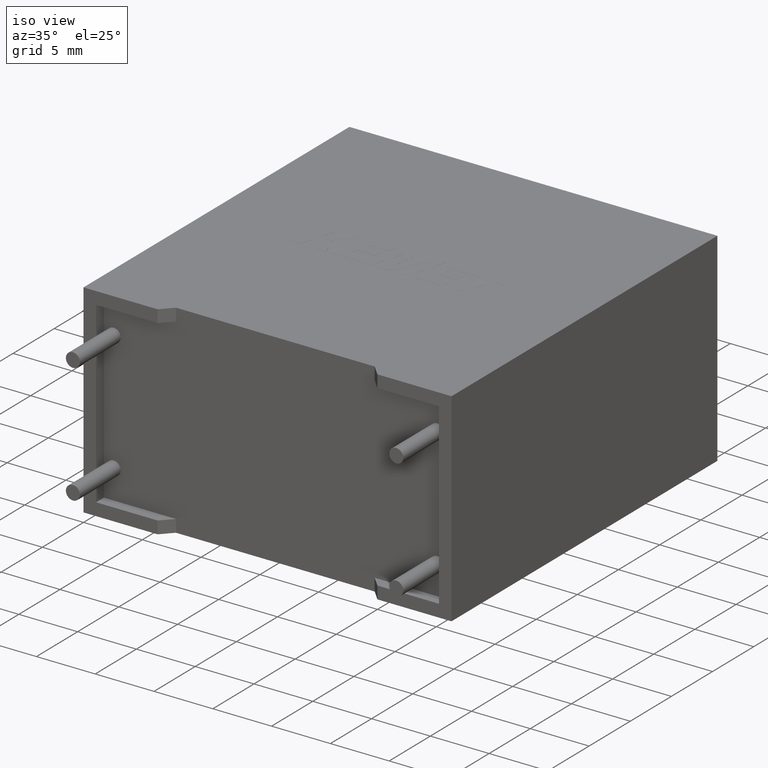
[diagram: clean part render]
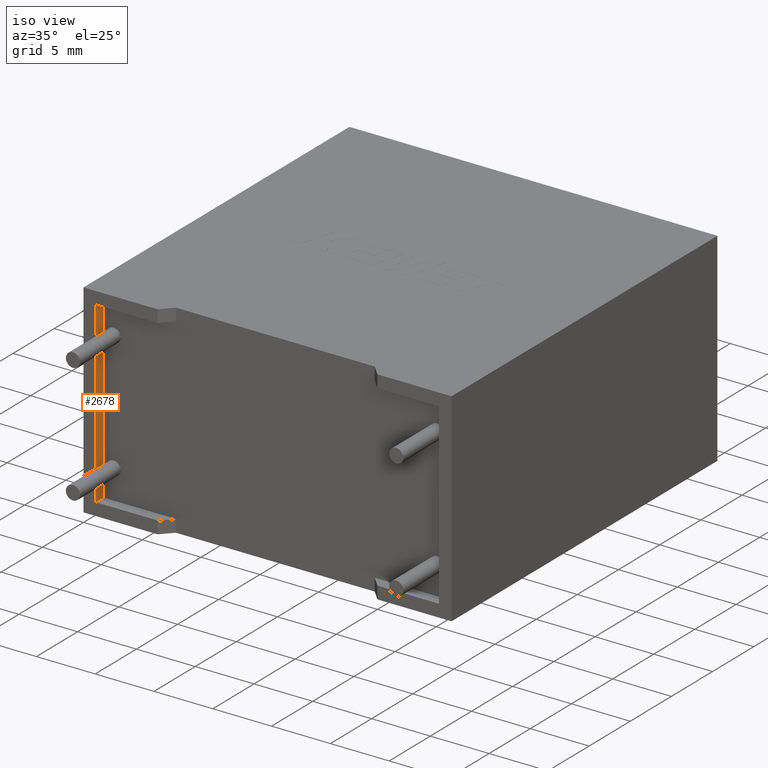
[diagram: same view with one face highlighted and labeled with its STEP entity id]
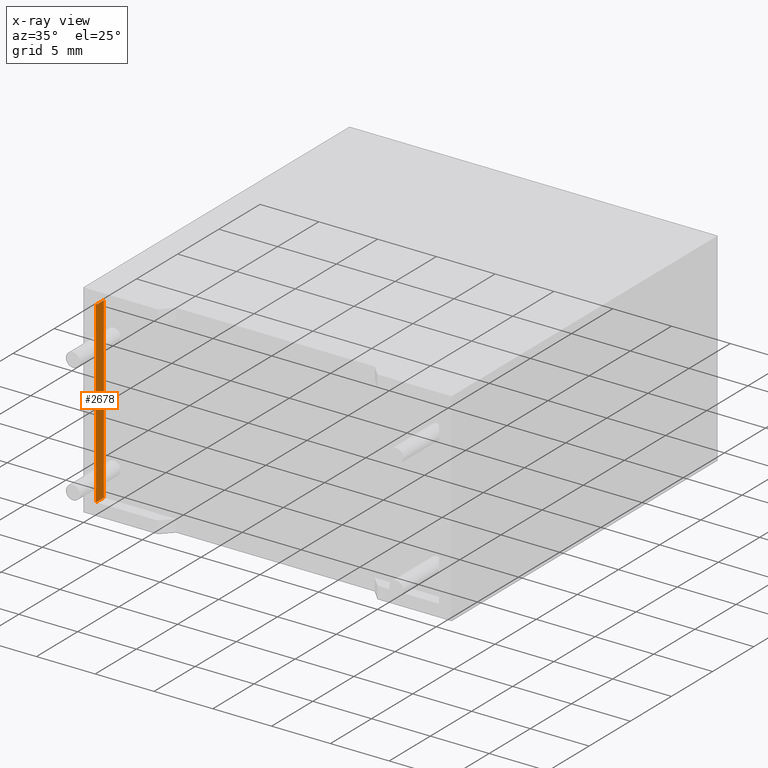
[diagram: x-ray of the same camera — body ghosted, the highlighted face saturated]
A machine part, iso view. The second image highlights one B-rep face of the part: STEP entity #2678.
The next image is the same camera in x-ray: the body ghosted, the highlighted face saturated — about 0% of this face is hidden behind the body in this view.
In plain terms, the highlighted planar face has unit normal (-1, 0, 0).
Its self-contained STEP definition (entity closure, byte-faithful):
#100 = DIRECTION ( 'NONE',  ( 0.000000000000000000, 0.000000000000000000, -1.000000000000000000 ) ) ;
#155 = ORIENTED_EDGE ( 'NONE', *, *, #1117, .F. ) ;
#188 = LINE ( 'NONE', #1137, #2950 ) ;
#255 = VERTEX_POINT ( 'NONE', #1700 ) ;
#390 = ORIENTED_EDGE ( 'NONE', *, *, #3064, .T. ) ;
#451 = VERTEX_POINT ( 'NONE', #807 ) ;
#585 = LINE ( 'NONE', #1593, #2782 ) ;
#588 = VERTEX_POINT ( 'NONE', #1067 ) ;
#751 = DIRECTION ( 'NONE',  ( -0.000000000000000000, -1.000000000000000000, -0.000000000000000000 ) ) ;
#807 = CARTESIAN_POINT ( 'NONE',  ( 1.063431000000000015, 0.000000000000000000, 1.063431000000000015 ) ) ;
#997 = ORIENTED_EDGE ( 'NONE', *, *, #2869, .T. ) ;
#1044 = LINE ( 'NONE', #2024, #1072 ) ;
#1067 = CARTESIAN_POINT ( 'NONE',  ( 1.063431000000000015, 0.9496199999999999086, 1.063431000000000015 ) ) ;
#1072 = VECTOR ( 'NONE', #100, 1000.000000000000000 ) ;
#1106 = PLANE ( 'NONE',  #2304 ) ;
#1117 = EDGE_CURVE ( 'NONE', #255, #588, #1044, .T. ) ;
#1137 = CARTESIAN_POINT ( 'NONE',  ( 1.063431000000000015, 0.000000000000000000, 16.23656899999999936 ) ) ;
#1421 = DIRECTION ( 'NONE',  ( 0.000000000000000000, 0.000000000000000000, -1.000000000000000000 ) ) ;
#1446 = LINE ( 'NONE', #2649, #2900 ) ;
#1549 = ORIENTED_EDGE ( 'NONE', *, *, #2132, .F. ) ;
#1593 = CARTESIAN_POINT ( 'NONE',  ( 1.063431000000000015, 0.9496199999999999086, 1.063431000000000015 ) ) ;
#1634 = FACE_OUTER_BOUND ( 'NONE', #2527, .T. ) ;
#1700 = CARTESIAN_POINT ( 'NONE',  ( 1.063431000000000015, 0.9496199999999999086, 16.23656899999999936 ) ) ;
#1780 = CARTESIAN_POINT ( 'NONE',  ( 1.063431000000000015, 0.000000000000000000, 16.23656899999999936 ) ) ;
#1834 = DIRECTION ( 'NONE',  ( -0.000000000000000000, -1.000000000000000000, -0.000000000000000000 ) ) ;
#1893 = CARTESIAN_POINT ( 'NONE',  ( 1.063431000000000015, 0.9496199999999999086, 16.23656899999999936 ) ) ;
#2024 = CARTESIAN_POINT ( 'NONE',  ( 1.063431000000000015, 0.9496199999999999086, 16.23656899999999936 ) ) ;
#2132 = EDGE_CURVE ( 'NONE', #588, #451, #585, .T. ) ;
#2304 = AXIS2_PLACEMENT_3D ( 'NONE', #1893, #2599, #2380 ) ;
#2380 = DIRECTION ( 'NONE',  ( 0.000000000000000000, 0.000000000000000000, 1.000000000000000000 ) ) ;
#2459 = VERTEX_POINT ( 'NONE', #1780 ) ;
#2527 = EDGE_LOOP ( 'NONE', ( #390, #1549, #155, #997 ) ) ;
#2599 = DIRECTION ( 'NONE',  ( -1.000000000000000000, 0.000000000000000000, 0.000000000000000000 ) ) ;
#2649 = CARTESIAN_POINT ( 'NONE',  ( 1.063431000000000015, 0.9496199999999999086, 16.23656899999999936 ) ) ;
#2678 = ADVANCED_FACE ( 'NONE', ( #1634 ), #1106, .F. ) ;
#2782 = VECTOR ( 'NONE', #1834, 1000.000000000000000 ) ;
#2869 = EDGE_CURVE ( 'NONE', #255, #2459, #1446, .T. ) ;
#2900 = VECTOR ( 'NONE', #751, 1000.000000000000000 ) ;
#2950 = VECTOR ( 'NONE', #1421, 1000.000000000000000 ) ;
#3064 = EDGE_CURVE ( 'NONE', #2459, #451, #188, .T. ) ;